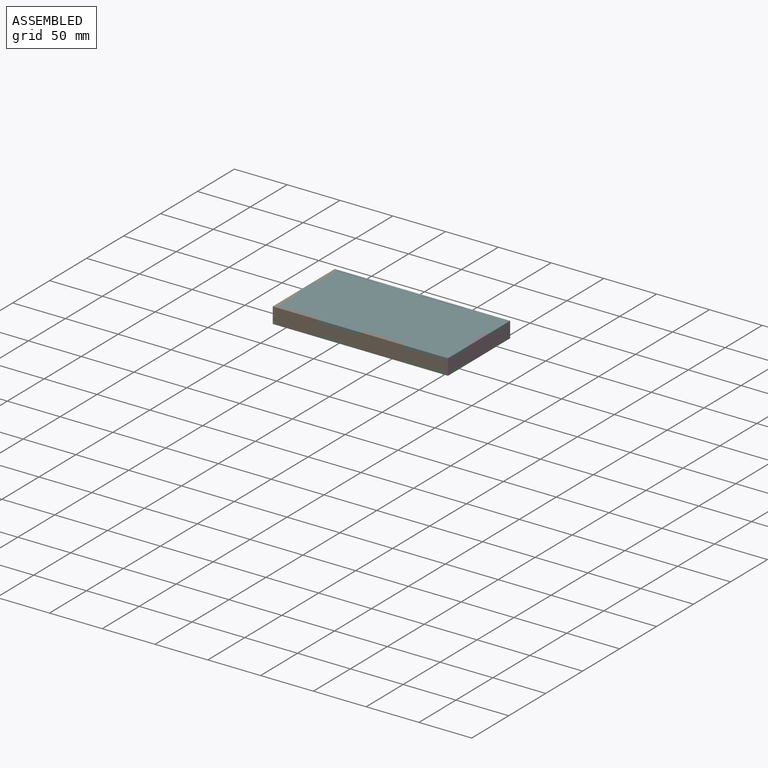
[diagram: assembled view]
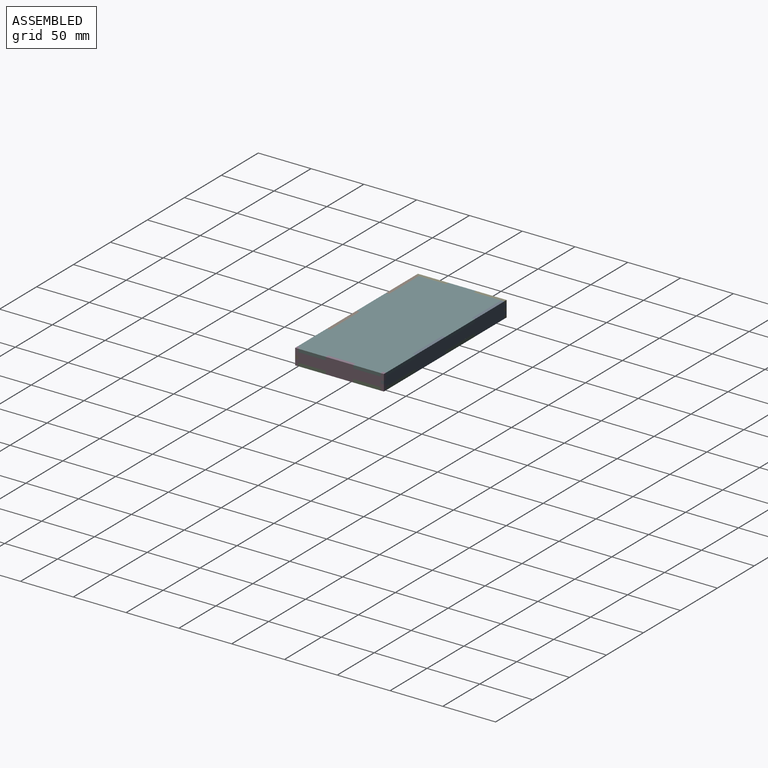
[diagram: assembled view, second angle]
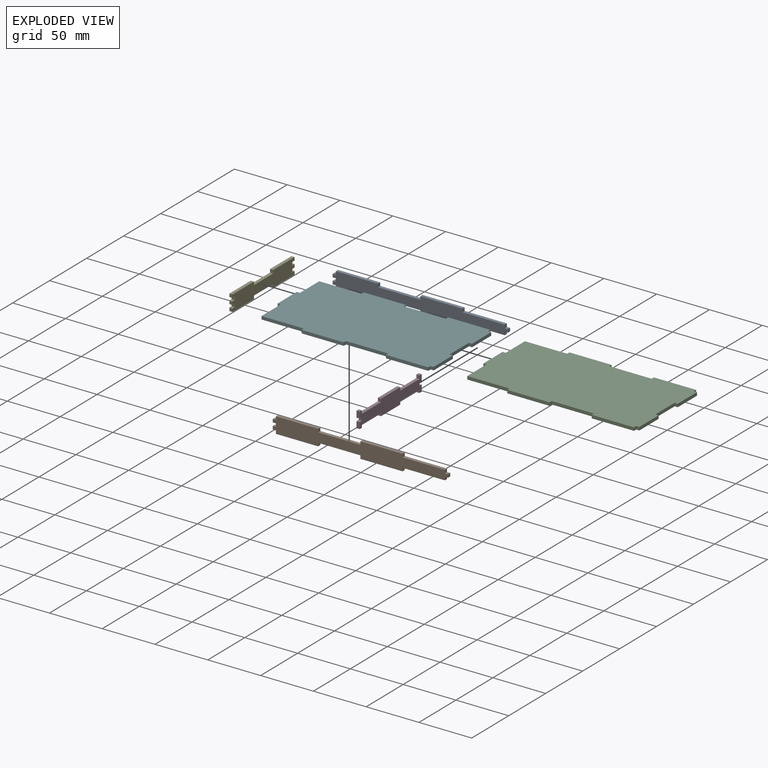
[diagram: exploded view]
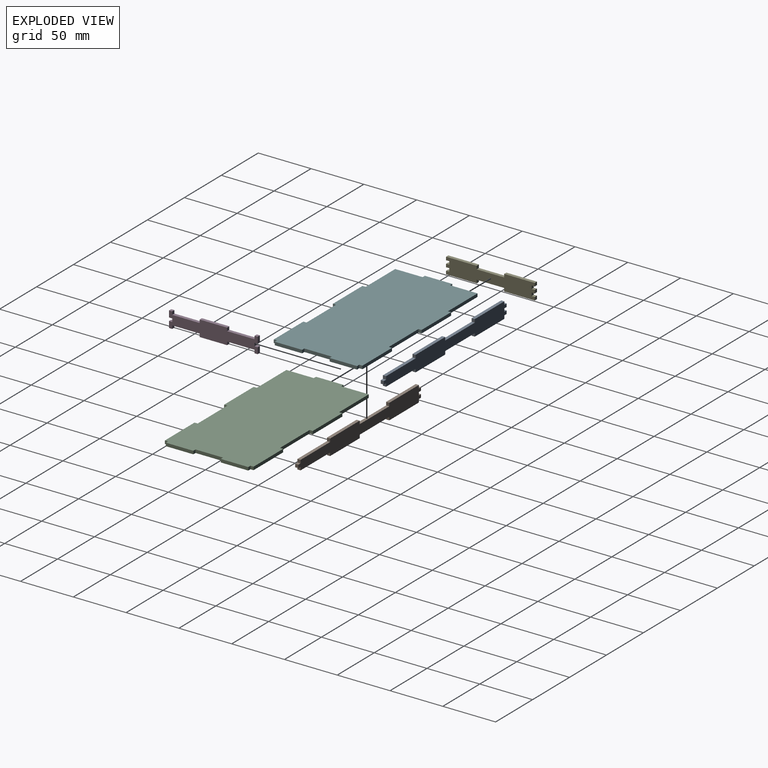
[diagram: exploded view, second angle]
ASSEMBLY  parts=6 mates=5
PART A: 30 faces, bbox 166x3x15 mm
  f0: plane 40x3mm, normal (0,0,1), area 120mm2, adj f1,f27,f28,f29
  f1: plane 3x3mm, normal (1,0,0), area 9mm2, adj f0,f2,f28,f29
  f2: plane 3x3mm, normal (0,0,1), area 9mm2, adj f1,f3,f28,f29
  f3: plane 3x3mm, normal (1,0,0), area 9mm2, adj f2,f4,f28,f29
  f4: plane 3x3mm, normal (0,0,-1), area 9mm2, adj f3,f5,f28,f29
  f5: plane 3x3mm, normal (1,0,0), area 9mm2, adj f4,f6,f28,f29
  f6: plane 40x3mm, normal (0,0,-1), area 120mm2, adj f5,f7,f28,f29
  f7: plane 3x3mm, normal (1,0,0), area 9mm2, adj f6,f8,f28,f29
  f8: plane 40x3mm, normal (0,0,-1), area 120mm2, adj f7,f9,f28,f29
  f9: plane 3x3mm, normal (-1,0,0), area 9mm2, adj f8,f10,f28,f29
  f10: plane 40x3mm, normal (0,0,-1), area 120mm2, adj f9,f11,f28,f29
  f11: plane 3x3mm, normal (1,0,0), area 9mm2, adj f10,f12,f28,f29
  f12: plane 40x3mm, normal (0,0,-1), area 120mm2, adj f11,f13,f28,f29
  f13: plane 3x3mm, normal (-1,0,0), area 9mm2, adj f12,f14,f28,f29
  f14: plane 3x3mm, normal (0,0,-1), area 9mm2, adj f13,f15,f28,f29
  f15: plane 3x3mm, normal (-1,0,0), area 9mm2, adj f14,f16,f28,f29
  f16: plane 3x3mm, normal (0,0,1), area 9mm2, adj f15,f17,f28,f29
  f17: plane 3x3mm, normal (-1,0,0), area 9mm2, adj f16,f18,f28,f29
  f18: plane 3x3mm, normal (0,0,-1), area 9mm2, adj f17,f19,f28,f29
  f19: plane 3x3mm, normal (-1,0,0), area 9mm2, adj f18,f20,f28,f29
  f20: plane 3x3mm, normal (0,0,1), area 9mm2, adj f19,f21,f28,f29
  f21: plane 3x3mm, normal (-1,0,0), area 9mm2, adj f20,f22,f28,f29
  f22: plane 40x3mm, normal (0,0,1), area 120mm2, adj f21,f23,f28,f29
  f23: plane 3x3mm, normal (1,0,0), area 9mm2, adj f22,f24,f28,f29
  f24: plane 40x3mm, normal (0,0,1), area 120mm2, adj f23,f25,f28,f29
  f25: plane 3x3mm, normal (-1,0,0), area 9mm2, adj f24,f26,f28,f29
  f26: plane 40x3mm, normal (0,0,1), area 120mm2, adj f25,f27,f28,f29
  f27: plane 3x3mm, normal (1,0,0), area 9mm2, adj f0,f26,f28,f29
  f28: plane 166x15mm, normal (0,-1,0), area 1947mm2, adj f0,f1,f2,f3,f4,f5,f6,f7
  f29: plane 166x15mm, normal (0,1,0), area 1947mm2, adj f0,f1,f2,f3,f4,f5,f6,f7
PART B: same geometry as A
PART C: 30 faces, bbox 166x84x3 mm
  f0: plane 3x3mm, normal (-1,0,0), area 9mm2, adj f1,f27,f28,f29
  f1: plane 40x3mm, normal (0,1,0), area 120mm2, adj f0,f2,f28,f29
  f2: plane 26x3mm, normal (-1,0,0), area 78mm2, adj f1,f3,f28,f29
  f3: plane 3x3mm, normal (0,1,0), area 9mm2, adj f2,f4,f28,f29
  f4: plane 26x3mm, normal (-1,0,0), area 78mm2, adj f3,f5,f28,f29
  f5: plane 3x3mm, normal (0,-1,0), area 9mm2, adj f4,f6,f28,f29
  f6: plane 26x3mm, normal (-1,0,0), area 78mm2, adj f5,f7,f28,f29
  f7: plane 40x3mm, normal (0,-1,0), area 120mm2, adj f6,f8,f28,f29
  f8: plane 3x3mm, normal (-1,0,0), area 9mm2, adj f7,f9,f28,f29
  f9: plane 40x3mm, normal (0,-1,0), area 120mm2, adj f8,f10,f28,f29
  f10: plane 3x3mm, normal (1,0,0), area 9mm2, adj f9,f11,f28,f29
  f11: plane 40x3mm, normal (0,-1,0), area 120mm2, adj f10,f12,f28,f29
  f12: plane 3x3mm, normal (-1,0,0), area 9mm2, adj f11,f13,f28,f29
  f13: plane 40x3mm, normal (0,-1,0), area 120mm2, adj f12,f14,f28,f29
  f14: plane 3x3mm, normal (1,0,0), area 9mm2, adj f13,f15,f28,f29
  f15: plane 3x3mm, normal (0,-1,0), area 9mm2, adj f14,f16,f28,f29
  f16: plane 26x3mm, normal (1,0,0), area 78mm2, adj f15,f17,f28,f29
  f17: plane 3x3mm, normal (0,1,0), area 9mm2, adj f16,f18,f28,f29
  f18: plane 26x3mm, normal (1,0,0), area 78mm2, adj f17,f19,f28,f29
  f19: plane 3x3mm, normal (0,-1,0), area 9mm2, adj f18,f20,f28,f29
  f20: plane 26x3mm, normal (1,0,0), area 78mm2, adj f19,f21,f28,f29
  f21: plane 3x3mm, normal (0,1,0), area 9mm2, adj f20,f22,f28,f29
  f22: plane 3x3mm, normal (1,0,0), area 9mm2, adj f21,f23,f28,f29
  f23: plane 40x3mm, normal (0,1,0), area 120mm2, adj f22,f24,f28,f29
  f24: plane 3x3mm, normal (-1,0,0), area 9mm2, adj f23,f25,f28,f29
  f25: plane 40x3mm, normal (0,1,0), area 120mm2, adj f24,f26,f28,f29
  f26: plane 3x3mm, normal (1,0,0), area 9mm2, adj f25,f27,f28,f29
  f27: plane 40x3mm, normal (0,1,0), area 120mm2, adj f0,f26,f28,f29
  f28: plane 166x84mm, normal (0,0,1), area 13194mm2, adj f0,f1,f2,f3,f4,f5,f6,f7
  f29: plane 166x84mm, normal (0,0,-1), area 13194mm2, adj f0,f1,f2,f3,f4,f5,f6,f7
PART D: 30 faces, bbox 3x84x15 mm
  f0: plane 3x3mm, normal (0,1,0), area 9mm2, adj f1,f27,f28,f29
  f1: plane 26x3mm, normal (0,0,1), area 78mm2, adj f0,f2,f28,f29
  f2: plane 3x3mm, normal (0,-1,0), area 9mm2, adj f1,f3,f28,f29
  f3: plane 26x3mm, normal (0,0,1), area 78mm2, adj f2,f4,f28,f29
  f4: plane 3x3mm, normal (0,1,0), area 9mm2, adj f3,f5,f28,f29
  f5: plane 3x3mm, normal (0,0,1), area 9mm2, adj f4,f6,f28,f29
  f6: plane 6x3mm, normal (0,-1,0), area 18mm2, adj f5,f7,f28,f29
  f7: plane 3x3mm, normal (0,0,-1), area 9mm2, adj f6,f8,f28,f29
  f8: plane 3x3mm, normal (0,-1,0), area 9mm2, adj f7,f9,f28,f29
  f9: plane 3x3mm, normal (0,0,1), area 9mm2, adj f8,f10,f28,f29
  f10: plane 6x3mm, normal (0,-1,0), area 18mm2, adj f9,f11,f28,f29
  f11: plane 3x3mm, normal (0,0,-1), area 9mm2, adj f10,f12,f28,f29
  f12: plane 3x3mm, normal (0,1,0), area 9mm2, adj f11,f13,f28,f29
  f13: plane 26x3mm, normal (0,0,-1), area 78mm2, adj f12,f14,f28,f29
  f14: plane 3x3mm, normal (0,-1,0), area 9mm2, adj f13,f15,f28,f29
  f15: plane 26x3mm, normal (0,0,-1), area 78mm2, adj f14,f16,f28,f29
  f16: plane 3x3mm, normal (0,1,0), area 9mm2, adj f15,f17,f28,f29
  f17: plane 26x3mm, normal (0,0,-1), area 78mm2, adj f16,f18,f28,f29
  f18: plane 3x3mm, normal (0,-1,0), area 9mm2, adj f17,f19,f28,f29
  f19: plane 3x3mm, normal (0,0,-1), area 9mm2, adj f18,f20,f28,f29
  f20: plane 6x3mm, normal (0,1,0), area 18mm2, adj f19,f21,f28,f29
  f21: plane 3x3mm, normal (0,0,1), area 9mm2, adj f20,f22,f28,f29
  f22: plane 3x3mm, normal (0,1,0), area 9mm2, adj f21,f23,f28,f29
  f23: plane 3x3mm, normal (0,0,-1), area 9mm2, adj f22,f24,f28,f29
  f24: plane 6x3mm, normal (0,1,0), area 18mm2, adj f23,f25,f28,f29
  f25: plane 3x3mm, normal (0,0,1), area 9mm2, adj f24,f26,f28,f29
  f26: plane 3x3mm, normal (0,-1,0), area 9mm2, adj f25,f27,f28,f29
  f27: plane 26x3mm, normal (0,0,1), area 78mm2, adj f0,f26,f28,f29
  f28: plane 84x15mm, normal (-1,0,0), area 930mm2, adj f0,f1,f2,f3,f4,f5,f6,f7
  f29: plane 84x15mm, normal (1,0,0), area 930mm2, adj f0,f1,f2,f3,f4,f5,f6,f7
PART E: 30 faces, bbox 3x84x15 mm
  f0: plane 3x3mm, normal (0,-1,0), area 9mm2, adj f1,f27,f28,f29
  f1: plane 29x3mm, normal (0,0,1), area 87mm2, adj f0,f2,f28,f29
  f2: plane 3x3mm, normal (0,1,0), area 9mm2, adj f1,f3,f28,f29
  f3: plane 3x3mm, normal (0,0,-1), area 9mm2, adj f2,f4,f28,f29
  f4: plane 3x3mm, normal (0,1,0), area 9mm2, adj f3,f5,f28,f29
  f5: plane 3x3mm, normal (0,0,1), area 9mm2, adj f4,f6,f28,f29
  f6: plane 3x3mm, normal (0,1,0), area 9mm2, adj f5,f7,f28,f29
  f7: plane 3x3mm, normal (0,0,-1), area 9mm2, adj f6,f8,f28,f29
  f8: plane 3x3mm, normal (0,1,0), area 9mm2, adj f7,f9,f28,f29
  f9: plane 3x3mm, normal (0,0,1), area 9mm2, adj f8,f10,f28,f29
  f10: plane 3x3mm, normal (0,1,0), area 9mm2, adj f9,f11,f28,f29
  f11: plane 29x3mm, normal (0,0,-1), area 87mm2, adj f10,f12,f28,f29
  f12: plane 3x3mm, normal (0,-1,0), area 9mm2, adj f11,f13,f28,f29
  f13: plane 26x3mm, normal (0,0,-1), area 78mm2, adj f12,f14,f28,f29
  f14: plane 3x3mm, normal (0,1,0), area 9mm2, adj f13,f15,f28,f29
  f15: plane 29x3mm, normal (0,0,-1), area 87mm2, adj f14,f16,f28,f29
  f16: plane 3x3mm, normal (0,-1,0), area 9mm2, adj f15,f17,f28,f29
  f17: plane 3x3mm, normal (0,0,1), area 9mm2, adj f16,f18,f28,f29
  f18: plane 3x3mm, normal (0,-1,0), area 9mm2, adj f17,f19,f28,f29
  f19: plane 3x3mm, normal (0,0,-1), area 9mm2, adj f18,f20,f28,f29
  f20: plane 3x3mm, normal (0,-1,0), area 9mm2, adj f19,f21,f28,f29
  f21: plane 3x3mm, normal (0,0,1), area 9mm2, adj f20,f22,f28,f29
  f22: plane 3x3mm, normal (0,-1,0), area 9mm2, adj f21,f23,f28,f29
  f23: plane 3x3mm, normal (0,0,-1), area 9mm2, adj f22,f24,f28,f29
  f24: plane 3x3mm, normal (0,-1,0), area 9mm2, adj f23,f25,f28,f29
  f25: plane 29x3mm, normal (0,0,1), area 87mm2, adj f24,f26,f28,f29
  f26: plane 3x3mm, normal (0,1,0), area 9mm2, adj f25,f27,f28,f29
  f27: plane 26x3mm, normal (0,0,1), area 78mm2, adj f0,f26,f28,f29
  f28: plane 84x15mm, normal (1,0,0), area 1068mm2, adj f0,f1,f2,f3,f4,f5,f6,f7
  f29: plane 84x15mm, normal (-1,0,0), area 1068mm2, adj f0,f1,f2,f3,f4,f5,f6,f7
PART F: same geometry as C
PLACE A t=(-111.3,-92.68,-48.21)mm
PLACE B t=(-111.3,-173.68,-48.21)mm
PLACE C t=(-111.3,-92.68,-60.21)mm
PLACE D t=(-111.3,-92.68,-48.21)mm
PLACE E rot(axis=(0.11,-0.96,-0.26),0deg) t=(-111.3,-92.68,-48.21)mm
PLACE F t=(-111.3,-92.68,-48.21)mm
MATE fastened C.f0 <-> A.f11  axis (-1,0,0) through (-151.3,-52.18,-58.71)mm
MATE fastened F.f0 <-> A.f23  axis (-1,0,0) through (-151.3,-52.18,-46.71)mm
MATE fastened B.f23 <-> F.f8  axis (1,0,0) through (-151.3,-133.18,-46.71)mm
MATE fastened E.f23 <-> B.f20  axis (0,0,-1) through (-192.8,-133.18,-48.21)mm
MATE fastened D.f4 <-> F.f15  axis (0,1,0) through (-29.8,-131.68,-46.71)mm
